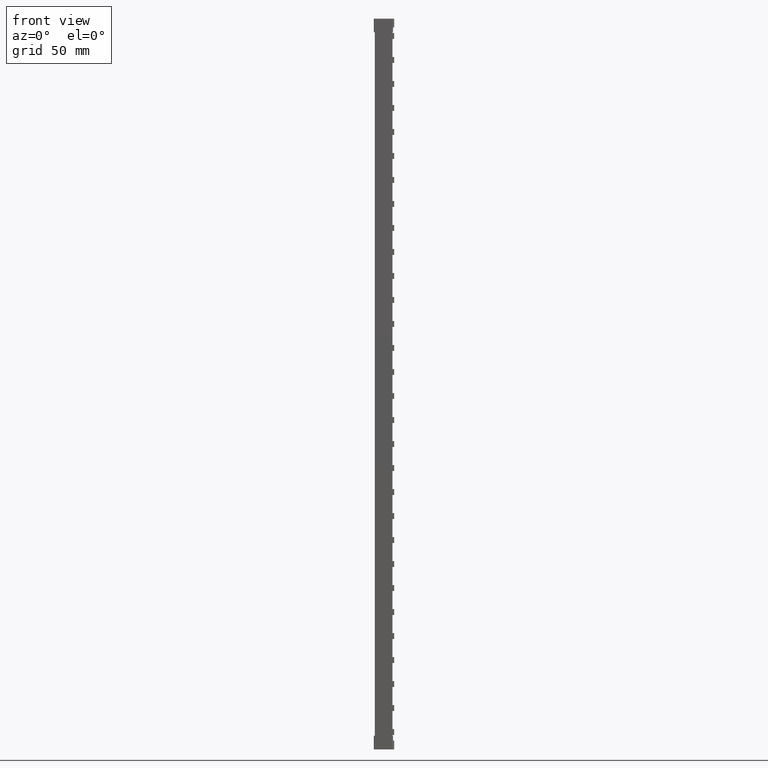
[diagram: clean part render]
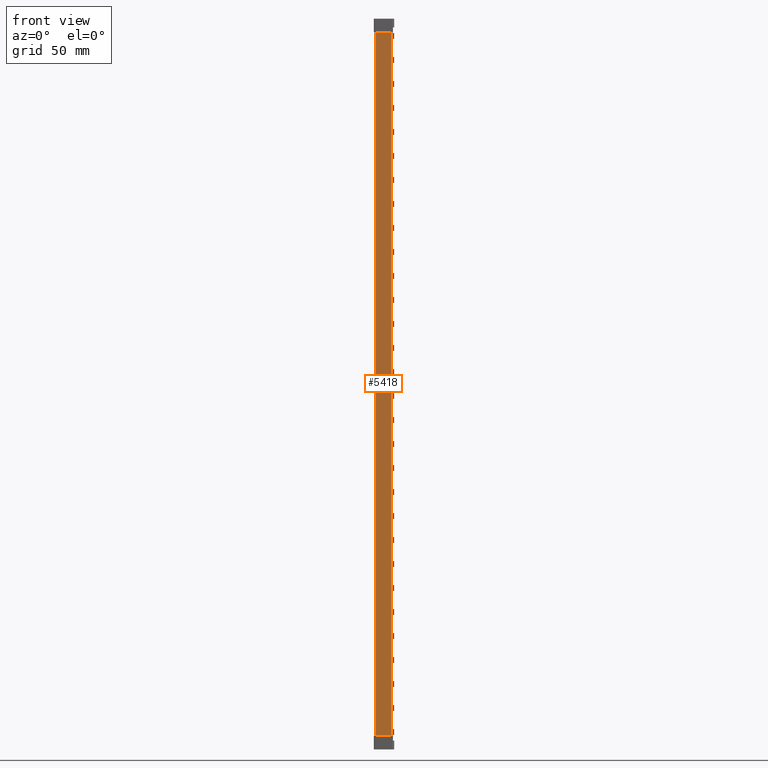
[diagram: same view with one face highlighted and labeled with its STEP entity id]
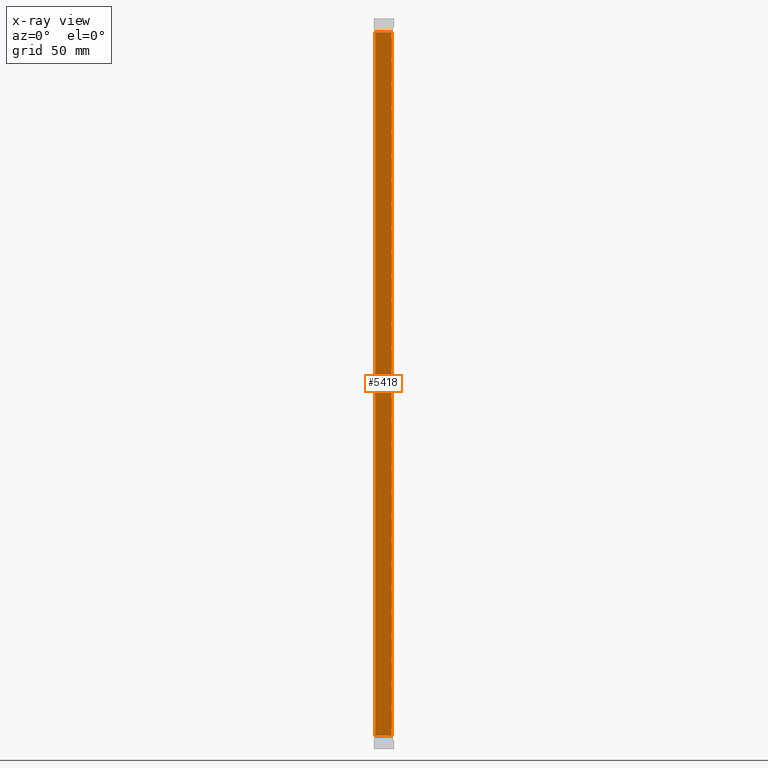
[diagram: x-ray of the same camera — body ghosted, the highlighted face saturated]
A machine part, front view. The second image highlights one B-rep face of the part: STEP entity #5418.
The next image is the same camera in x-ray: the body ghosted, the highlighted face saturated — about 0% of this face is hidden behind the body in this view.
In plain terms, the highlighted planar face has unit normal (-0, 1, 0).
Its self-contained STEP definition (entity closure, byte-faithful):
#5211 = EDGE_CURVE ( 'NONE', #43806, #43815, #29553, .T. ) ;
#5245 = EDGE_CURVE ( 'NONE', #40651, #43815, #29626, .T. ) ;
#5257 = EDGE_CURVE ( 'NONE', #40565, #43806, #29615, .T. ) ;
#5418 = ADVANCED_FACE ( 'NONE', ( #8520 ), #8526, .F. ) ;
#8520 = FACE_OUTER_BOUND ( 'NONE', #35575, .T. ) ;
#8526 = PLANE ( 'NONE',  #30693 ) ;
#8548 = DIRECTION ( 'NONE',  ( -0.9999999999999998900, -1.136590436583420100E-008, 0.0000000000000000000 ) ) ;
#8561 = DIRECTION ( 'NONE',  ( -1.136590436583420300E-008, 1.000000000000000000, 0.0000000000000000000 ) ) ;
#8565 = CARTESIAN_POINT ( 'NONE',  ( 0.0000000000000000000, 5.551115123125782700E-014, 219.0000000000000000 ) ) ;
#9447 = LINE ( 'NONE', #9502, #38184 ) ;
#9502 = CARTESIAN_POINT ( 'NONE',  ( -0.4999997060800690000, -5.682893331100043300E-009, 209.9000000000000100 ) ) ;
#9522 = DIRECTION ( 'NONE',  ( 0.9999999999999998900, 1.136590436583420100E-008, -3.864550688586627000E-026 ) ) ;
#9926 = EDGE_CURVE ( 'NONE', #40565, #40651, #9447, .T. ) ;
#11195 = ORIENTED_EDGE ( 'NONE', *, *, #9926, .F. ) ;
#11246 = ORIENTED_EDGE ( 'NONE', *, *, #5211, .T. ) ;
#11269 = ORIENTED_EDGE ( 'NONE', *, *, #5245, .F. ) ;
#11273 = ORIENTED_EDGE ( 'NONE', *, *, #5257, .T. ) ;
#20409 = CARTESIAN_POINT ( 'NONE',  ( 0.0000000000000000000, 5.725105502598715000E-014, 209.9000000000000100 ) ) ;
#20498 = CARTESIAN_POINT ( 'NONE',  ( 11.80192812978781800, 1.341396452464796400E-007, 209.9000000000000100 ) ) ;
#29545 = CARTESIAN_POINT ( 'NONE',  ( -0.4999997060800690000, -5.682891657254884900E-009, -305.9000000000000300 ) ) ;
#29553 = LINE ( 'NONE', #29545, #30546 ) ;
#29559 = DIRECTION ( 'NONE',  ( 0.9999999999999998900, 1.136590449795155200E-008, 3.864550688587075800E-026 ) ) ;
#29581 = CARTESIAN_POINT ( 'NONE',  ( -9.184850993604136500E-017, 5.551115123125782700E-014, 219.0000000000000000 ) ) ;
#29608 = DIRECTION ( 'NONE',  ( -0.0000000000000000000, -0.0000000000000000000, -1.000000000000000000 ) ) ;
#29609 = DIRECTION ( 'NONE',  ( -0.0000000000000000000, -0.0000000000000000000, -1.000000000000000000 ) ) ;
#29615 = LINE ( 'NONE', #29581, #30634 ) ;
#29623 = CARTESIAN_POINT ( 'NONE',  ( 11.80192812978781800, 1.341396419667680700E-007, 219.0000000000000000 ) ) ;
#29626 = LINE ( 'NONE', #29623, #30597 ) ;
#30546 = VECTOR ( 'NONE', #29559, 1000.000000000000100 ) ;
#30597 = VECTOR ( 'NONE', #29609, 1000.000000000000000 ) ;
#30634 = VECTOR ( 'NONE', #29608, 1000.000000000000000 ) ;
#30693 = AXIS2_PLACEMENT_3D ( 'NONE', #8565, #8561, #8548 ) ;
#35575 = EDGE_LOOP ( 'NONE', ( #11195, #11273, #11246, #11269 ) ) ;
#38184 = VECTOR ( 'NONE', #9522, 1000.000000000000100 ) ;
#40565 = VERTEX_POINT ( 'NONE', #20409 ) ;
#40651 = VERTEX_POINT ( 'NONE', #20498 ) ;
#41921 = CARTESIAN_POINT ( 'NONE',  ( 11.80192812978781800, 1.341396452464796400E-007, -305.9000000000000300 ) ) ;
#41961 = CARTESIAN_POINT ( 'NONE',  ( 0.0000000000000000000, 5.725105502598715000E-014, -305.9000000000000300 ) ) ;
#43806 = VERTEX_POINT ( 'NONE', #41961 ) ;
#43815 = VERTEX_POINT ( 'NONE', #41921 ) ;